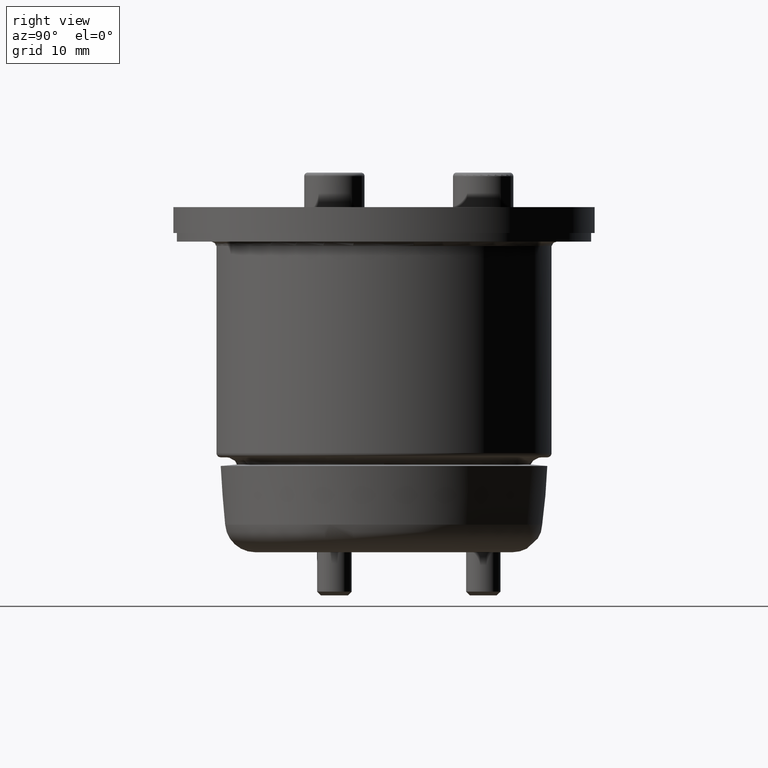
[diagram: clean part render]
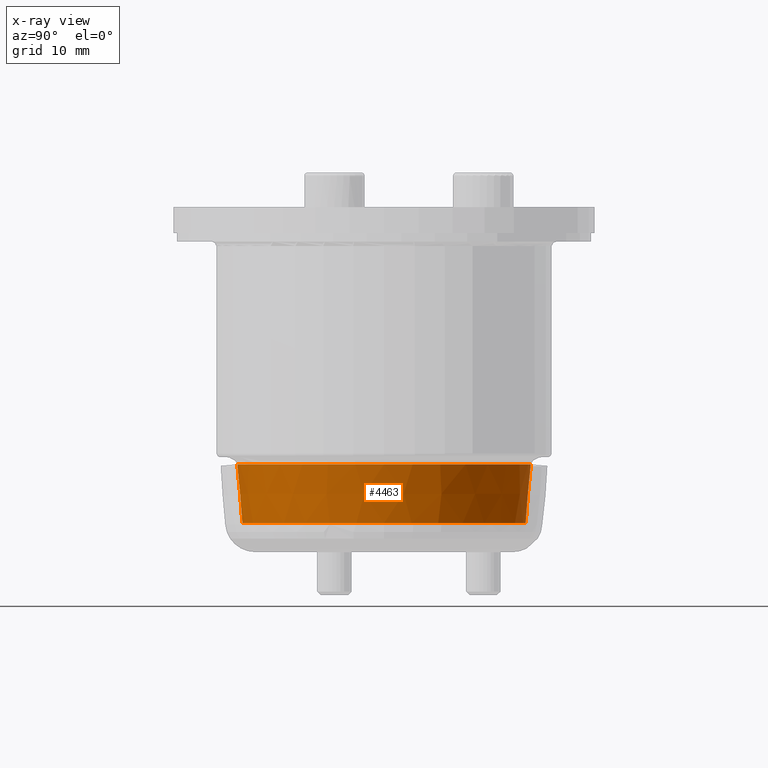
[diagram: x-ray — body ghosted, one internal face saturated and labeled with its STEP entity id]
A machine part, right view, then the same camera in x-ray: the body is ghosted and one INTERNAL B-rep face — a face not visible from any outside direction — is saturated and labeled: STEP entity #4463.
In plain terms, the highlighted conical surface has half-angle 5 deg.
Its self-contained STEP definition (entity closure, byte-faithful):
#806=LINE('',#8146,#1152);
#1152=VECTOR('',#5765,17.0067413022899);
#1181=CONICAL_SURFACE('',#4859,17.0067413022899,0.0872664625997103);
#1401=FACE_OUTER_BOUND('',#1687,.T.);
#1687=EDGE_LOOP('',(#4127,#4128,#4129,#4130,#4131,#4132,#4133));
#1820=CIRCLE('',#4849,16.4190021407424);
#1821=CIRCLE('',#4850,16.4190021407424);
#1825=CIRCLE('',#4854,16.4190021407424);
#1829=CIRCLE('',#4860,17.0143664417415);
#1830=CIRCLE('',#4861,17.0143664417415);
#2251=VERTEX_POINT('',#8124);
#2252=VERTEX_POINT('',#8125);
#2253=VERTEX_POINT('',#8127);
#2259=VERTEX_POINT('',#8143);
#2260=VERTEX_POINT('',#8144);
#2882=EDGE_CURVE('',#2251,#2252,#1820,.T.);
#2883=EDGE_CURVE('',#2252,#2253,#1821,.T.);
#2887=EDGE_CURVE('',#2253,#2251,#1825,.T.);
#2891=EDGE_CURVE('',#2259,#2260,#1829,.T.);
#2892=EDGE_CURVE('',#2260,#2252,#806,.T.);
#2893=EDGE_CURVE('',#2260,#2259,#1830,.T.);
#4127=ORIENTED_EDGE('',*,*,#2891,.T.);
#4128=ORIENTED_EDGE('',*,*,#2892,.T.);
#4129=ORIENTED_EDGE('',*,*,#2882,.F.);
#4130=ORIENTED_EDGE('',*,*,#2887,.F.);
#4131=ORIENTED_EDGE('',*,*,#2883,.F.);
#4132=ORIENTED_EDGE('',*,*,#2892,.F.);
#4133=ORIENTED_EDGE('',*,*,#2893,.T.);
#4463=ADVANCED_FACE('',(#1401),#1181,.F.);
#4849=AXIS2_PLACEMENT_3D('',#8126,#5741,#5742);
#4850=AXIS2_PLACEMENT_3D('',#8128,#5743,#5744);
#4854=AXIS2_PLACEMENT_3D('',#8134,#5751,#5752);
#4859=AXIS2_PLACEMENT_3D('',#8142,#5761,#5762);
#4860=AXIS2_PLACEMENT_3D('',#8145,#5763,#5764);
#4861=AXIS2_PLACEMENT_3D('',#8147,#5766,#5767);
#5741=DIRECTION('center_axis',(3.38090894656207E-17,1.,-3.38090894656207E-17));
#5742=DIRECTION('ref_axis',(1.,-3.38090894656207E-17,-1.50142518265376E-32));
#5743=DIRECTION('center_axis',(3.38090894656207E-17,1.,-3.38090894656207E-17));
#5744=DIRECTION('ref_axis',(1.,-3.38090894656207E-17,-1.50142518265376E-32));
#5751=DIRECTION('center_axis',(3.38090894656207E-17,1.,-3.38090894656207E-17));
#5752=DIRECTION('ref_axis',(1.,-3.38090894656207E-17,-1.50142518265376E-32));
#5761=DIRECTION('center_axis',(0.,1.,0.));
#5762=DIRECTION('ref_axis',(-1.,0.,0.));
#5763=DIRECTION('center_axis',(0.,1.,0.));
#5764=DIRECTION('ref_axis',(-1.,0.,0.));
#5765=DIRECTION('',(-0.087155742747652,-0.996194698091746,1.06735001383222E-17));
#5766=DIRECTION('center_axis',(0.,1.,0.));
#5767=DIRECTION('ref_axis',(-1.,0.,0.));
#8124=CARTESIAN_POINT('',(-55.8690021407424,1.36926638587852,9.86076131526265E-31));
#8125=CARTESIAN_POINT('',(-23.0309978592575,1.36926638587852,-2.01074784168538E-15));
#8126=CARTESIAN_POINT('Origin',(-39.45,1.36926638587852,-2.01074784168538E-15));
#8127=CARTESIAN_POINT('',(-39.45,1.36926638587852,-16.4190021407424));
#8128=CARTESIAN_POINT('Origin',(-39.45,1.36926638587852,-2.01074784168538E-15));
#8134=CARTESIAN_POINT('Origin',(-39.45,1.36926638587852,-2.01074784168538E-15));
#8142=CARTESIAN_POINT('Origin',(-39.45,8.08715574274766,0.));
#8143=CARTESIAN_POINT('',(-56.4643664417415,8.17431148549532,0.));
#8144=CARTESIAN_POINT('',(-22.4356335582585,8.17431148549532,-2.08365894023989E-15));
#8145=CARTESIAN_POINT('Origin',(-39.45,8.17431148549532,0.));
#8146=CARTESIAN_POINT('',(-22.4432586977101,8.08715574274766,-2.08272512997764E-15));
#8147=CARTESIAN_POINT('Origin',(-39.45,8.17431148549532,0.));